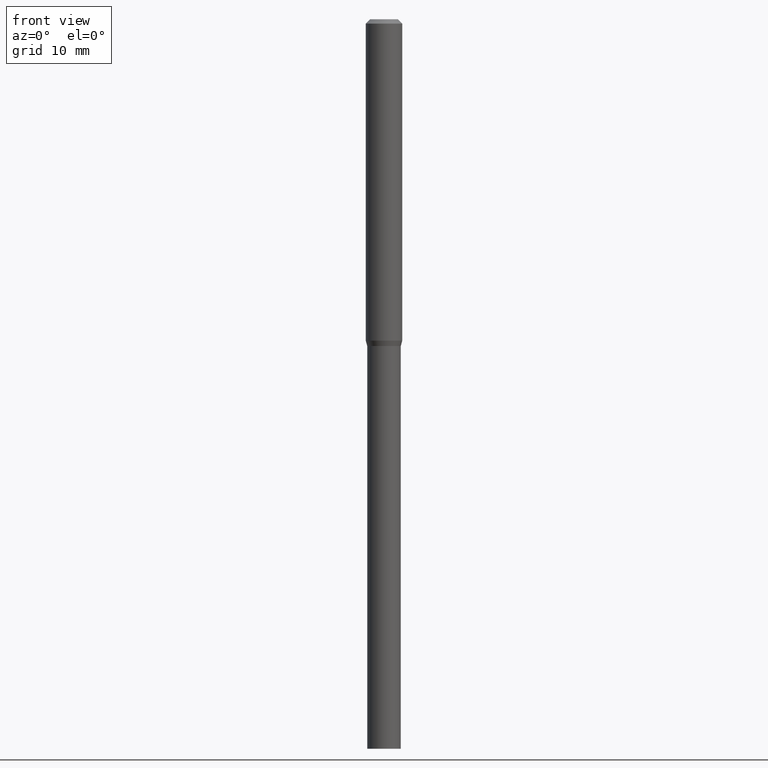
[diagram: clean part render]
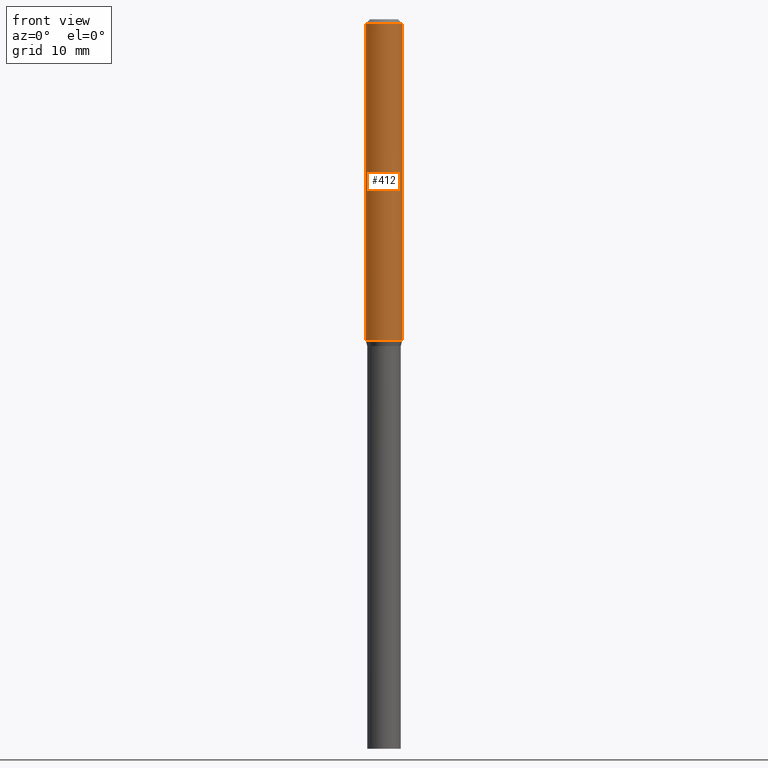
[diagram: same view with one face highlighted and labeled with its STEP entity id]
A machine part, front view. The second image highlights one B-rep face of the part: STEP entity #412.
In plain terms, the highlighted cylindrical surface (edge-blend (fillet) strip) has radius 1.5875 mm, axis along (-0, 0, 1).
Its self-contained STEP definition (entity closure, byte-faithful):
#2 = CARTESIAN_POINT ( 'NONE',  ( 3.668203209277705088E-31, -5.237222008264718399E-17, -0.01499999999999999944 ) ) ;
#5 = DIRECTION ( 'NONE',  ( -2.445468806185136877E-29, 3.491481338843145188E-15, 1.000000000000000000 ) ) ;
#8 = EDGE_CURVE ( 'NONE', #282, #103, #243, .T. ) ;
#10 = VECTOR ( 'NONE', #343, 39.37007874015748143 ) ;
#53 = CARTESIAN_POINT ( 'NONE',  ( -0.06250000000000000000, -3.401217960903056063E-15, -1.101339745962156336 ) ) ;
#63 = AXIS2_PLACEMENT_3D ( 'NONE', #166, #208, #447 ) ;
#74 = ORIENTED_EDGE ( 'NONE', *, *, #364, .T. ) ;
#75 = CARTESIAN_POINT ( 'NONE',  ( 0.000000000000000000, 0.000000000000000000, 0.000000000000000000 ) ) ;
#85 = CARTESIAN_POINT ( 'NONE',  ( 0.06250000000000000000, -4.888073874380388472E-16, -0.01499999999999999944 ) ) ;
#103 = VERTEX_POINT ( 'NONE', #85 ) ;
#128 = CIRCLE ( 'NONE', #63, 0.06250000000000000000 ) ;
#143 = DIRECTION ( 'NONE',  ( -2.445468806185136597E-29, 3.491481338843145583E-15, 1.000000000000000000 ) ) ;
#164 = VERTEX_POINT ( 'NONE', #450 ) ;
#166 = CARTESIAN_POINT ( 'NONE',  ( 2.693291993762315998E-29, -3.845307170753119074E-15, -1.101339745962156336 ) ) ;
#192 = LINE ( 'NONE', #332, #212 ) ;
#198 = CARTESIAN_POINT ( 'NONE',  ( 0.06250000000000000000, -4.364351673553916694E-16, 3.047610484872459871E-30 ) ) ;
#203 = VERTEX_POINT ( 'NONE', #53 ) ;
#208 = DIRECTION ( 'NONE',  ( -2.445468806185136597E-29, 3.491481338843145583E-15, 1.000000000000000000 ) ) ;
#212 = VECTOR ( 'NONE', #5, 39.37007874015748143 ) ;
#214 = CARTESIAN_POINT ( 'NONE',  ( -0.06250000000000000000, -1.504750485567820658E-15, -0.01499999999999999944 ) ) ;
#216 = DIRECTION ( 'NONE',  ( 1.000000000000000000, -6.982962677686266711E-15, 0.000000000000000000 ) ) ;
#243 = CIRCLE ( 'NONE', #354, 0.06250000000000000000 ) ;
#258 = EDGE_CURVE ( 'NONE', #203, #164, #128, .T. ) ;
#262 = FACE_OUTER_BOUND ( 'NONE', #414, .T. ) ;
#264 = CYLINDRICAL_SURFACE ( 'NONE', #437, 0.06250000000000000000 ) ;
#282 = VERTEX_POINT ( 'NONE', #214 ) ;
#288 = DIRECTION ( 'NONE',  ( -2.445468806185136597E-29, 3.491481338843145583E-15, 1.000000000000000000 ) ) ;
#332 = CARTESIAN_POINT ( 'NONE',  ( -0.06250000000000000000, 4.440892098500626162E-16, -3.074334431409316114E-30 ) ) ;
#339 = LINE ( 'NONE', #198, #10 ) ;
#343 = DIRECTION ( 'NONE',  ( -2.445468806185136877E-29, 3.491481338843145188E-15, 1.000000000000000000 ) ) ;
#346 = ORIENTED_EDGE ( 'NONE', *, *, #8, .F. ) ;
#352 = ORIENTED_EDGE ( 'NONE', *, *, #372, .F. ) ;
#354 = AXIS2_PLACEMENT_3D ( 'NONE', #2, #143, #216 ) ;
#364 = EDGE_CURVE ( 'NONE', #164, #103, #339, .T. ) ;
#372 = EDGE_CURVE ( 'NONE', #203, #282, #192, .T. ) ;
#403 = ORIENTED_EDGE ( 'NONE', *, *, #258, .T. ) ;
#412 = ADVANCED_FACE ( 'NONE', ( #262 ), #264, .T. ) ;
#414 = EDGE_LOOP ( 'NONE', ( #352, #403, #74, #346 ) ) ;
#428 = DIRECTION ( 'NONE',  ( 1.000000000000000000, -6.982962677686266711E-15, 4.876176775795935793E-29 ) ) ;
#437 = AXIS2_PLACEMENT_3D ( 'NONE', #75, #288, #428 ) ;
#447 = DIRECTION ( 'NONE',  ( 1.000000000000000000, -6.982962677686262766E-15, 0.000000000000000000 ) ) ;
#450 = CARTESIAN_POINT ( 'NONE',  ( 0.06250000000000000000, -4.281742338108510743E-15, -1.101339745962156336 ) ) ;